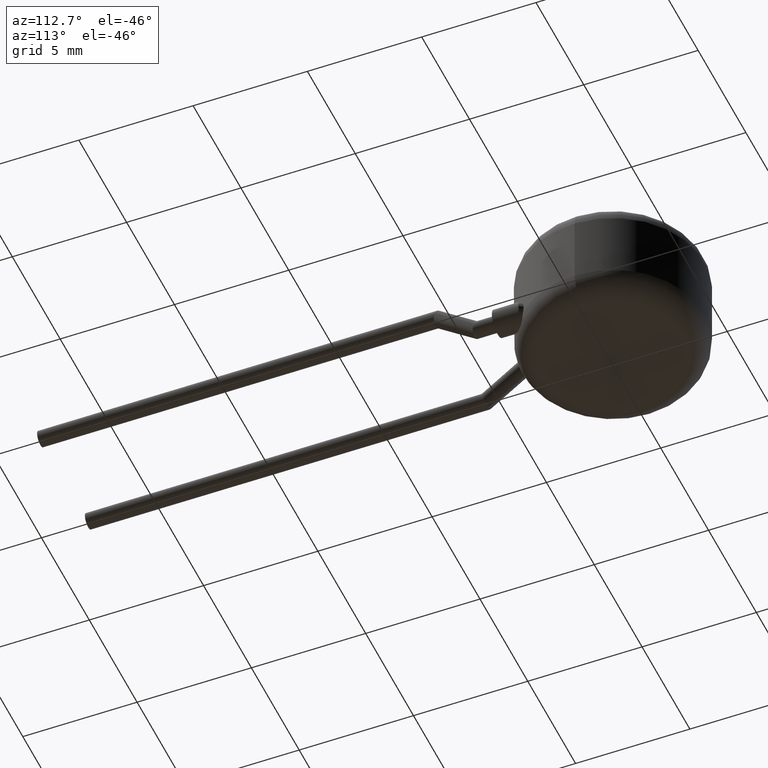
[diagram: clean part render]
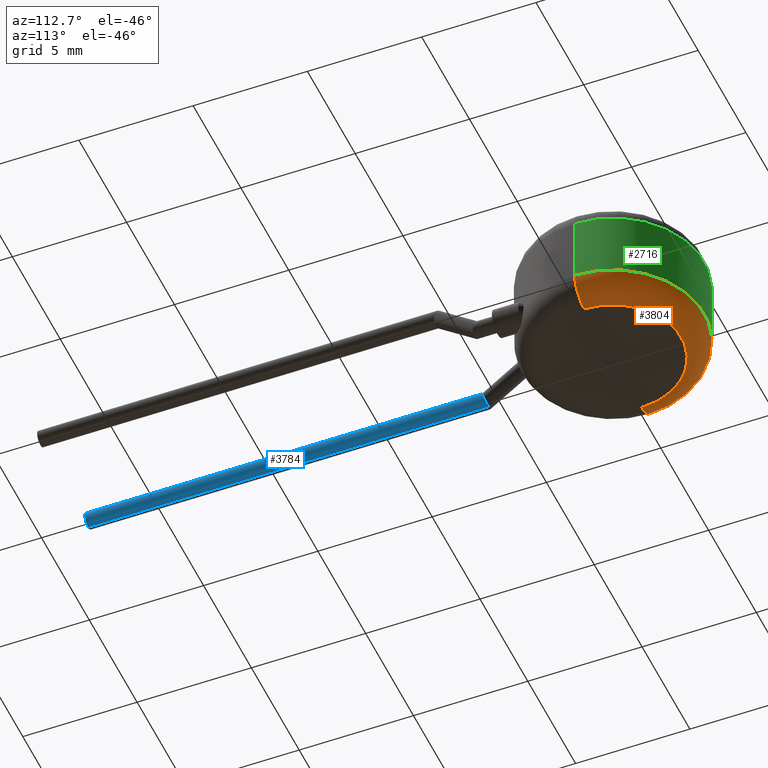
[diagram: same view with three faces highlighted in distinct colors, each labeled with its STEP entity id]
A machine part, auxiliary view with three faces highlighted in distinct colors.
Their STEP definitions:

[orange] entity #3804 — the highlighted toroidal blend (fillet) surface has major radius 3 mm and minor (blend) radius 1 mm.
#177 = ORIENTED_EDGE ( 'NONE', *, *, #795, .T. ) ;
#203 = VERTEX_POINT ( 'NONE', #3164 ) ;
#242 = CIRCLE ( 'NONE', #1356, 3.000000000000000000 ) ;
#402 = DIRECTION ( 'NONE',  ( 1.000000000000000000, 0.000000000000000000, 0.000000000000000000 ) ) ;
#459 = CARTESIAN_POINT ( 'NONE',  ( -3.000000000000000000, 3.673940397442059868E-16, 1.000000000000000000 ) ) ;
#555 = FACE_OUTER_BOUND ( 'NONE', #2865, .T. ) ;
#748 = DIRECTION ( 'NONE',  ( 1.224646799147353207E-16, 1.000000000000000000, -0.000000000000000000 ) ) ;
#775 = DIRECTION ( 'NONE',  ( 0.000000000000000000, 0.000000000000000000, -1.000000000000000000 ) ) ;
#793 = CARTESIAN_POINT ( 'NONE',  ( -4.000000000000000000, 0.000000000000000000, 1.000000000000000000 ) ) ;
#795 = EDGE_CURVE ( 'NONE', #203, #1057, #1213, .T. ) ;
#800 = DIRECTION ( 'NONE',  ( 0.000000000000000000, 0.000000000000000000, 1.000000000000000000 ) ) ;
#1008 = DIRECTION ( 'NONE',  ( 1.000000000000000000, 0.000000000000000000, 0.000000000000000000 ) ) ;
#1057 = VERTEX_POINT ( 'NONE', #793 ) ;
#1109 = DIRECTION ( 'NONE',  ( 1.000000000000000000, 0.000000000000000000, 0.000000000000000000 ) ) ;
#1213 = CIRCLE ( 'NONE', #3113, 1.000000000000000000 ) ;
#1356 = AXIS2_PLACEMENT_3D ( 'NONE', #1882, #2156, #1008 ) ;
#1429 = ORIENTED_EDGE ( 'NONE', *, *, #3074, .F. ) ;
#1672 = ORIENTED_EDGE ( 'NONE', *, *, #3747, .F. ) ;
#1686 = CARTESIAN_POINT ( 'NONE',  ( 3.000000000000000000, 0.000000000000000000, 1.000000000000000000 ) ) ;
#1800 = CIRCLE ( 'NONE', #2027, 4.000000000000000000 ) ;
#1875 = VERTEX_POINT ( 'NONE', #3542 ) ;
#1882 = CARTESIAN_POINT ( 'NONE',  ( 0.000000000000000000, 0.000000000000000000, 0.000000000000000000 ) ) ;
#1967 = CIRCLE ( 'NONE', #2460, 1.000000000000000000 ) ;
#2027 = AXIS2_PLACEMENT_3D ( 'NONE', #3680, #2158, #402 ) ;
#2109 = AXIS2_PLACEMENT_3D ( 'NONE', #3776, #800, #1109 ) ;
#2156 = DIRECTION ( 'NONE',  ( -0.000000000000000000, -0.000000000000000000, -1.000000000000000000 ) ) ;
#2158 = DIRECTION ( 'NONE',  ( 0.000000000000000000, 0.000000000000000000, 1.000000000000000000 ) ) ;
#2414 = TOROIDAL_SURFACE ( 'NONE', #2109, 3.000000000000000000, 1.000000000000000000 ) ;
#2460 = AXIS2_PLACEMENT_3D ( 'NONE', #1686, #2592, #775 ) ;
#2592 = DIRECTION ( 'NONE',  ( 0.000000000000000000, -1.000000000000000000, 0.000000000000000000 ) ) ;
#2740 = VERTEX_POINT ( 'NONE', #3034 ) ;
#2865 = EDGE_LOOP ( 'NONE', ( #1672, #177, #1429, #3482 ) ) ;
#3034 = CARTESIAN_POINT ( 'NONE',  ( 4.000000000000000000, 4.898587196589412829E-16, 1.000000000000000000 ) ) ;
#3074 = EDGE_CURVE ( 'NONE', #2740, #1057, #1800, .T. ) ;
#3105 = DIRECTION ( 'NONE',  ( -1.000000000000000000, 1.224646799147352961E-16, 0.000000000000000000 ) ) ;
#3113 = AXIS2_PLACEMENT_3D ( 'NONE', #459, #748, #3105 ) ;
#3155 = EDGE_CURVE ( 'NONE', #1875, #2740, #1967, .T. ) ;
#3164 = CARTESIAN_POINT ( 'NONE',  ( -3.000000000000000000, 4.286263797015736595E-16, 0.000000000000000000 ) ) ;
#3482 = ORIENTED_EDGE ( 'NONE', *, *, #3155, .F. ) ;
#3542 = CARTESIAN_POINT ( 'NONE',  ( 3.000000000000000000, 0.000000000000000000, 0.000000000000000000 ) ) ;
#3680 = CARTESIAN_POINT ( 'NONE',  ( 0.000000000000000000, 0.000000000000000000, 1.000000000000000000 ) ) ;
#3747 = EDGE_CURVE ( 'NONE', #203, #1875, #242, .T. ) ;
#3776 = CARTESIAN_POINT ( 'NONE',  ( 0.000000000000000000, 0.000000000000000000, 1.000000000000000000 ) ) ;
#3804 = ADVANCED_FACE ( 'NONE', ( #555 ), #2414, .T. ) ;

[blue] entity #3784 — the highlighted cylindrical surface (edge-blend (fillet) strip) has radius 0.35 mm, axis along (0, -1, -0).
#70 = LINE ( 'NONE', #3286, #1463 ) ;
#382 = LINE ( 'NONE', #3332, #1779 ) ;
#476 = CARTESIAN_POINT ( 'NONE',  ( -2.500000000000000444, -6.481513300333735295, 2.149999999999999911 ) ) ;
#851 = EDGE_CURVE ( 'NONE', #874, #1147, #70, .T. ) ;
#874 = VERTEX_POINT ( 'NONE', #2673 ) ;
#1005 = CARTESIAN_POINT ( 'NONE',  ( -1.799999999999998712, -6.481513300333736183, 2.149999999999999911 ) ) ;
#1028 = CARTESIAN_POINT ( 'NONE',  ( -1.799999999999998712, -6.718486699666266659, 2.850000000000001865 ) ) ;
#1147 = VERTEX_POINT ( 'NONE', #1573 ) ;
#1206 = ORIENTED_EDGE ( 'NONE', *, *, #2853, .T. ) ;
#1218 = VERTEX_POINT ( 'NONE', #1375 ) ;
#1297 = DIRECTION ( 'NONE',  ( 0.000000000000000000, -1.000000000000000000, -1.246209393661499619E-16 ) ) ;
#1375 = CARTESIAN_POINT ( 'NONE',  ( -2.500000000000000444, -23.99999999999999645, 2.149999999999997691 ) ) ;
#1396 = ORIENTED_EDGE ( 'NONE', *, *, #1545, .F. ) ;
#1463 = VECTOR ( 'NONE', #2364, 1000.000000000000000 ) ;
#1545 = EDGE_CURVE ( 'NONE', #3236, #1218, #382, .T. ) ;
#1573 = CARTESIAN_POINT ( 'NONE',  ( -2.500000000000000444, -23.99999999999999645, 2.849999999999999645 ) ) ;
#1628 = CARTESIAN_POINT ( 'NONE',  ( -2.500000000000000444, -6.481513300333735295, 2.149999999999999911 ) ) ;
#1779 = VECTOR ( 'NONE', #3615, 1000.000000000000000 ) ;
#1851 =( BOUNDED_CURVE ( )  B_SPLINE_CURVE ( 3, ( #1628, #1005, #1028, #2212 ),
 .UNSPECIFIED., .F., .F. ) 
 B_SPLINE_CURVE_WITH_KNOTS ( ( 4, 4 ),
 ( 0.000000000000000000, 3.141592653589793116 ),
 .UNSPECIFIED. ) 
 CURVE ( )  GEOMETRIC_REPRESENTATION_ITEM ( )  RATIONAL_B_SPLINE_CURVE ( ( 1.000000000000000000, 0.3333333333333333703, 0.3333333333333333703, 1.000000000000000000 ) ) 
 REPRESENTATION_ITEM ( '' )  );
#2088 = CARTESIAN_POINT ( 'NONE',  ( -2.500000000000000444, -23.99999999999999645, 2.499999999999998668 ) ) ;
#2212 = CARTESIAN_POINT ( 'NONE',  ( -2.500000000000000444, -6.718486699666265771, 2.850000000000001865 ) ) ;
#2297 = EDGE_CURVE ( 'NONE', #3236, #874, #1851, .T. ) ;
#2364 = DIRECTION ( 'NONE',  ( 0.000000000000000000, -1.000000000000000000, -1.246209393661499619E-16 ) ) ;
#2534 = ORIENTED_EDGE ( 'NONE', *, *, #2297, .T. ) ;
#2537 = CIRCLE ( 'NONE', #2727, 0.3500000000000009215 ) ;
#2671 = EDGE_LOOP ( 'NONE', ( #2534, #3380, #1206, #1396 ) ) ;
#2673 = CARTESIAN_POINT ( 'NONE',  ( -2.500000000000000444, -6.718486699666265771, 2.850000000000001865 ) ) ;
#2727 = AXIS2_PLACEMENT_3D ( 'NONE', #2088, #3617, #3597 ) ;
#2853 = EDGE_CURVE ( 'NONE', #1147, #1218, #2537, .T. ) ;
#3012 = AXIS2_PLACEMENT_3D ( 'NONE', #3723, #1297, #3678 ) ;
#3047 = FACE_OUTER_BOUND ( 'NONE', #2671, .T. ) ;
#3104 = CYLINDRICAL_SURFACE ( 'NONE', #3012, 0.3500000000000009215 ) ;
#3236 = VERTEX_POINT ( 'NONE', #476 ) ;
#3286 = CARTESIAN_POINT ( 'NONE',  ( -2.500000000000000444, -6.239329260734217897, 2.850000000000001865 ) ) ;
#3332 = CARTESIAN_POINT ( 'NONE',  ( -2.500000000000000444, -6.239329260734217897, 2.149999999999999911 ) ) ;
#3380 = ORIENTED_EDGE ( 'NONE', *, *, #851, .T. ) ;
#3597 = DIRECTION ( 'NONE',  ( -1.000000000000000000, 0.000000000000000000, 0.000000000000000000 ) ) ;
#3615 = DIRECTION ( 'NONE',  ( 0.000000000000000000, -1.000000000000000000, -1.246209393661499619E-16 ) ) ;
#3617 = DIRECTION ( 'NONE',  ( -5.551115123125783935E-17, 1.000000000000000000, 0.000000000000000000 ) ) ;
#3678 = DIRECTION ( 'NONE',  ( 0.000000000000000000, 0.000000000000000000, -1.000000000000000000 ) ) ;
#3723 = CARTESIAN_POINT ( 'NONE',  ( -2.500000000000000444, -6.239329260734217897, 2.500000000000000888 ) ) ;
#3784 = ADVANCED_FACE ( 'NONE', ( #3047 ), #3104, .T. ) ;

[green] entity #2716 — the highlighted cylindrical surface (partial cylindrical patch) has radius 4 mm, axis along (-0, -0, -1).
#6 = DIRECTION ( 'NONE',  ( -0.000000000000000000, -0.000000000000000000, -1.000000000000000000 ) ) ;
#207 = EDGE_CURVE ( 'NONE', #1421, #2740, #250, .T. ) ;
#209 = CARTESIAN_POINT ( 'NONE',  ( 0.000000000000000000, 0.000000000000000000, 4.000000000000000000 ) ) ;
#250 = LINE ( 'NONE', #3500, #2605 ) ;
#290 = CARTESIAN_POINT ( 'NONE',  ( -4.000000000000000000, 0.000000000000000000, 4.000000000000000000 ) ) ;
#394 = EDGE_CURVE ( 'NONE', #489, #1421, #2705, .T. ) ;
#402 = DIRECTION ( 'NONE',  ( 1.000000000000000000, 0.000000000000000000, 0.000000000000000000 ) ) ;
#489 = VERTEX_POINT ( 'NONE', #290 ) ;
#557 = DIRECTION ( 'NONE',  ( -0.000000000000000000, -0.000000000000000000, -1.000000000000000000 ) ) ;
#570 = CARTESIAN_POINT ( 'NONE',  ( -4.000000000000000000, 0.000000000000000000, 5.000000000000000000 ) ) ;
#575 = ORIENTED_EDGE ( 'NONE', *, *, #1050, .F. ) ;
#627 = EDGE_LOOP ( 'NONE', ( #2662, #2053, #1343, #575 ) ) ;
#680 = CYLINDRICAL_SURFACE ( 'NONE', #2268, 4.000000000000000000 ) ;
#793 = CARTESIAN_POINT ( 'NONE',  ( -4.000000000000000000, 0.000000000000000000, 1.000000000000000000 ) ) ;
#1050 = EDGE_CURVE ( 'NONE', #489, #1057, #3216, .T. ) ;
#1057 = VERTEX_POINT ( 'NONE', #793 ) ;
#1305 = FACE_OUTER_BOUND ( 'NONE', #627, .T. ) ;
#1343 = ORIENTED_EDGE ( 'NONE', *, *, #3074, .T. ) ;
#1385 = DIRECTION ( 'NONE',  ( -0.000000000000000000, -0.000000000000000000, -1.000000000000000000 ) ) ;
#1421 = VERTEX_POINT ( 'NONE', #2576 ) ;
#1800 = CIRCLE ( 'NONE', #2027, 4.000000000000000000 ) ;
#1902 = CARTESIAN_POINT ( 'NONE',  ( 0.000000000000000000, 0.000000000000000000, 5.000000000000000000 ) ) ;
#1952 = AXIS2_PLACEMENT_3D ( 'NONE', #209, #6, #2567 ) ;
#2027 = AXIS2_PLACEMENT_3D ( 'NONE', #3680, #2158, #402 ) ;
#2053 = ORIENTED_EDGE ( 'NONE', *, *, #207, .T. ) ;
#2158 = DIRECTION ( 'NONE',  ( 0.000000000000000000, 0.000000000000000000, 1.000000000000000000 ) ) ;
#2182 = DIRECTION ( 'NONE',  ( -0.000000000000000000, -0.000000000000000000, -1.000000000000000000 ) ) ;
#2268 = AXIS2_PLACEMENT_3D ( 'NONE', #1902, #2182, #3707 ) ;
#2567 = DIRECTION ( 'NONE',  ( 1.000000000000000000, 0.000000000000000000, 0.000000000000000000 ) ) ;
#2576 = CARTESIAN_POINT ( 'NONE',  ( 4.000000000000000000, 4.898587196589412829E-16, 4.000000000000000000 ) ) ;
#2605 = VECTOR ( 'NONE', #557, 1000.000000000000000 ) ;
#2662 = ORIENTED_EDGE ( 'NONE', *, *, #394, .T. ) ;
#2705 = CIRCLE ( 'NONE', #1952, 4.000000000000000000 ) ;
#2716 = ADVANCED_FACE ( 'NONE', ( #1305 ), #680, .T. ) ;
#2740 = VERTEX_POINT ( 'NONE', #3034 ) ;
#3034 = CARTESIAN_POINT ( 'NONE',  ( 4.000000000000000000, 4.898587196589412829E-16, 1.000000000000000000 ) ) ;
#3074 = EDGE_CURVE ( 'NONE', #2740, #1057, #1800, .T. ) ;
#3216 = LINE ( 'NONE', #570, #3437 ) ;
#3437 = VECTOR ( 'NONE', #1385, 1000.000000000000000 ) ;
#3500 = CARTESIAN_POINT ( 'NONE',  ( 4.000000000000000000, 4.898587196589412829E-16, 5.000000000000000000 ) ) ;
#3680 = CARTESIAN_POINT ( 'NONE',  ( 0.000000000000000000, 0.000000000000000000, 1.000000000000000000 ) ) ;
#3707 = DIRECTION ( 'NONE',  ( -1.000000000000000000, 0.000000000000000000, 0.000000000000000000 ) ) ;